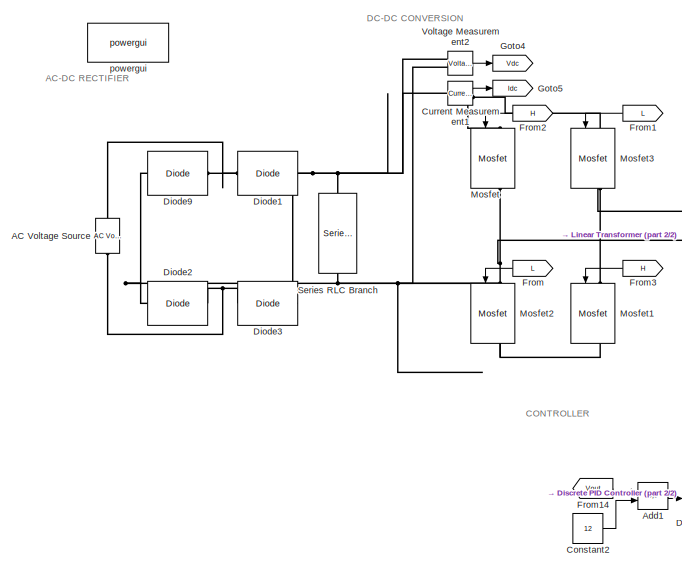
[diagram: root canvas - part 1/2, left side, full height]
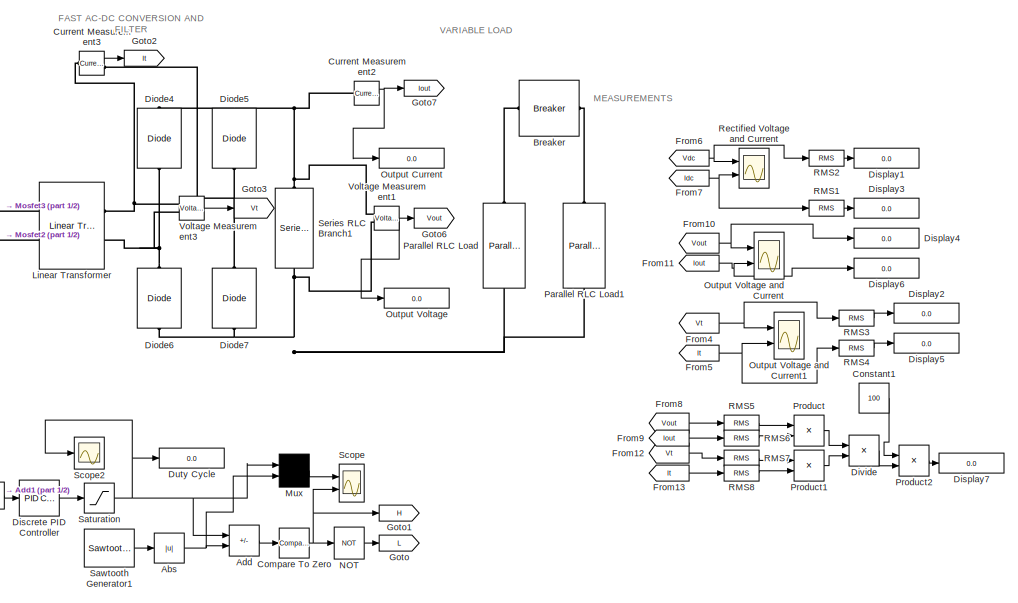
[diagram: root canvas - part 2/2, right side, full height]
MODEL slx_1d7abaa98e18
KIND model
CONFIG AbsTol = auto
CONFIG EnableMultiTasking = off
CONFIG FixedStep = auto
CONFIG MaxStep = auto
CONFIG MinStep = auto
CONFIG RelTol = 1e-3
CONFIG SampleTimeConstraint = Unconstrained
CONFIG SolverName = VariableStepAuto
CONFIG StartTime = 0.0
CONFIG StopTime = 10.0
BLOCK [Reference] AC Voltage Source  REF=spsACVoltageSourceLib/AC Voltage Source
  NameLocation = right
  Ports = [0, 0, 0, 0, 0, 1, 1]
  SourceBlock = spsACVoltageSourceLib/AC Voltage Source
  SourceProductBaseCode = PS
  SourceType = AC Voltage Source
BLOCK [Abs] Abs
  SaturateOnIntegerOverflow = off
BLOCK [Sum] Add
  IconShape = rectangular
  Inputs = +-
  Ports = [2, 1]
BLOCK [Sum] Add1
  IconShape = rectangular
  Inputs = +-
  Ports = [2, 1]
BLOCK [Reference] Breaker  REF=spsBreakerLib/Breaker
  Ports = [0, 0, 0, 0, 0, 1, 1]
  SourceBlock = spsBreakerLib/Breaker
  SourceProductBaseCode = PS
  SourceType = Breaker
BLOCK [Reference] Compare To Zero  REF=simulink/Logic and Bit
Operations/Compare
To Zero
  Ports = [1, 1]
  SourceBlock = simulink/Logic and Bit\nOperations/Compare\nTo Zero
  SourceProductBaseCode = SL
  SourceType = Compare To Zero
BLOCK [Constant] Constant1
  Value = 100
BLOCK [Constant] Constant2
  Value = 12
BLOCK [Reference] Current Measurement1  REF=spsCurrentMeasurementLib/Current Measurement
  Ports = [0, 1, 0, 0, 0, 1, 1]
  SourceBlock = spsCurrentMeasurementLib/Current Measurement
  SourceProductBaseCode = PS
  SourceType = Current Measurement
  UserDataPersistent = on
BLOCK [Reference] Current Measurement2  REF=spsCurrentMeasurementLib/Current Measurement
  Ports = [0, 1, 0, 0, 0, 1, 1]
  SourceBlock = spsCurrentMeasurementLib/Current Measurement
  SourceProductBaseCode = PS
  SourceType = Current Measurement
  UserDataPersistent = on
BLOCK [Reference] Current Measurement3  REF=spsCurrentMeasurementLib/Current Measurement
  Ports = [0, 1, 0, 0, 0, 1, 1]
  SourceBlock = spsCurrentMeasurementLib/Current Measurement
  SourceProductBaseCode = PS
  SourceType = Current Measurement
  UserDataPersistent = on
BLOCK [Reference] Diode1  REF=spsDiodeLib/Diode
  Ports = [0, 0, 0, 0, 0, 1, 1]
  SourceBlock = spsDiodeLib/Diode
  SourceProductBaseCode = PS
  SourceType = Diode
BLOCK [Reference] Diode2  REF=spsDiodeLib/Diode
  Ports = [0, 0, 0, 0, 0, 1, 1]
  SourceBlock = spsDiodeLib/Diode
  SourceProductBaseCode = PS
  SourceType = Diode
BLOCK [Reference] Diode3  REF=spsDiodeLib/Diode
  Ports = [0, 0, 0, 0, 0, 1, 1]
  SourceBlock = spsDiodeLib/Diode
  SourceProductBaseCode = PS
  SourceType = Diode
BLOCK [Reference] Diode4  REF=spsDiodeLib/Diode
  NameLocation = right
  Ports = [0, 0, 0, 0, 0, 1, 1]
  SourceBlock = spsDiodeLib/Diode
  SourceProductBaseCode = PS
  SourceType = Diode
BLOCK [Reference] Diode5  REF=spsDiodeLib/Diode
  NameLocation = right
  Ports = [0, 0, 0, 0, 0, 1, 1]
  SourceBlock = spsDiodeLib/Diode
  SourceProductBaseCode = PS
  SourceType = Diode
BLOCK [Reference] Diode6  REF=spsDiodeLib/Diode
  NameLocation = right
  Ports = [0, 0, 0, 0, 0, 1, 1]
  SourceBlock = spsDiodeLib/Diode
  SourceProductBaseCode = PS
  SourceType = Diode
BLOCK [Reference] Diode7  REF=spsDiodeLib/Diode
  NameLocation = right
  Ports = [0, 0, 0, 0, 0, 1, 1]
  SourceBlock = spsDiodeLib/Diode
  SourceProductBaseCode = PS
  SourceType = Diode
BLOCK [Reference] Diode9  REF=spsDiodeLib/Diode
  Ports = [0, 0, 0, 0, 0, 1, 1]
  SourceBlock = spsDiodeLib/Diode
  SourceProductBaseCode = PS
  SourceType = Diode
BLOCK [Reference] Discrete PID Controller  REF=pid_lib/PID Controller
  Ports = [1, 1]
  SourceBlock = pid_lib/PID Controller
  SourceProductBaseCode = SL
  SourceType = PID 1dof
BLOCK [Display] Display1
  Decimation = 1
  Ports = [1]
BLOCK [Display] Display2
  Decimation = 1
  Ports = [1]
BLOCK [Display] Display3
  Decimation = 1
  Ports = [1]
BLOCK [Display] Display4
  Decimation = 1
  Ports = [1]
BLOCK [Display] Display5
  Decimation = 1
  Ports = [1]
BLOCK [Display] Display6
  Decimation = 1
  Ports = [1]
BLOCK [Display] Display7
  Decimation = 1
  Ports = [1]
BLOCK [Product] Divide
  Inputs = */
  Ports = [2, 1]
BLOCK [Display] Duty Cycle
  Decimation = 1
  Ports = [1]
BLOCK [From] From
  GotoTag = L
  NameLocation = top
BLOCK [From] From1
  GotoTag = L
  NameLocation = top
BLOCK [From] From10
  GotoTag = Vout
BLOCK [From] From11
  GotoTag = Iout
BLOCK [From] From12
  GotoTag = Vt
BLOCK [From] From13
  GotoTag = It
BLOCK [From] From14
  GotoTag = Vout
BLOCK [From] From2
  GotoTag = H
  NameLocation = top
BLOCK [From] From3
  GotoTag = H
  NameLocation = top
BLOCK [From] From4
  GotoTag = Vt
BLOCK [From] From5
  GotoTag = It
BLOCK [From] From6
  GotoTag = Vdc
BLOCK [From] From7
  GotoTag = Idc
BLOCK [From] From8
  GotoTag = Vout
BLOCK [From] From9
  GotoTag = Iout
BLOCK [Goto] Goto
  GotoTag = L
BLOCK [Goto] Goto1
  GotoTag = H
BLOCK [Goto] Goto2
  GotoTag = It
BLOCK [Goto] Goto3
  GotoTag = Vt
BLOCK [Goto] Goto4
  GotoTag = Vdc
BLOCK [Goto] Goto5
  GotoTag = Idc
BLOCK [Goto] Goto6
  GotoTag = Vout
BLOCK [Goto] Goto7
  GotoTag = Iout
BLOCK [Reference] Linear Transformer  REF=spsLinearTransformerLib/Linear Transformer
  Ports = [0, 0, 0, 0, 0, 2, 2]
  SourceBlock = spsLinearTransformerLib/Linear Transformer
  SourceProductBaseCode = PS
  SourceType = Linear Transformer
BLOCK [Reference] Mosfet  REF=spsMosfetLib/Mosfet
  NameLocation = left
  Ports = [1, 1, 0, 0, 0, 1, 1]
  SourceBlock = spsMosfetLib/Mosfet
  SourceProductBaseCode = PS
  SourceType = Mosfet
BLOCK [Reference] Mosfet1  REF=spsMosfetLib/Mosfet
  NameLocation = left
  Ports = [1, 1, 0, 0, 0, 1, 1]
  SourceBlock = spsMosfetLib/Mosfet
  SourceProductBaseCode = PS
  SourceType = Mosfet
BLOCK [Reference] Mosfet2  REF=spsMosfetLib/Mosfet
  NameLocation = left
  Ports = [1, 1, 0, 0, 0, 1, 1]
  SourceBlock = spsMosfetLib/Mosfet
  SourceProductBaseCode = PS
  SourceType = Mosfet
BLOCK [Reference] Mosfet3  REF=spsMosfetLib/Mosfet
  NameLocation = left
  Ports = [1, 1, 0, 0, 0, 1, 1]
  SourceBlock = spsMosfetLib/Mosfet
  SourceProductBaseCode = PS
  SourceType = Mosfet
BLOCK [Mux] Mux
  Inputs = 2
  Ports = [2, 1]
BLOCK [Logic] NOT
  AllPortsSameDT = off
  IconShape = distinctive
  Operator = NOT
  OutDataTypeStr = boolean
  Ports = [1, 1]
BLOCK [Display] Output Current
  Decimation = 1
  Ports = [1]
BLOCK [Display] Output Voltage
  Decimation = 1
  Ports = [1]
BLOCK [Scope] Output Voltage and Current
  Floating = off
  NumInputPorts = 2
  Ports = [2]
  ScopeSpecificationString = Simulink.scopes.TimeScopeBlockCfg('CurrentConfiguration', extmgr.ConfigurationSet(extmgr.Configuration('Core','General UI',true,'FigureColor',[1 1 1]),extmgr.Configuration('Core','Source UI',true),extmgr.Configuration('Sources','WiredSimulink',true,'DataLoggingVariableName','ScopeData2'),extmgr.Configuration('Visuals','Time Domain',true,'SerializedDisplays',{struct('MinYLimReal','-1.66123','MaxYLi...<+2371ch>
BLOCK [Scope] Output Voltage and Current1
  Floating = off
  NumInputPorts = 2
  Ports = [2]
  ScopeSpecificationString = Simulink.scopes.TimeScopeBlockCfg('CurrentConfiguration', extmgr.ConfigurationSet(extmgr.Configuration('Core','General UI',true,'FigureColor',[1 1 1]),extmgr.Configuration('Core','Source UI',true),extmgr.Configuration('Sources','WiredSimulink',true,'DataLoggingVariableName','ScopeData1'),extmgr.Configuration('Visuals','Time Domain',true,'SerializedDisplays',{struct('MinYLimReal','-1.66123','MaxYLi...<+2328ch>
BLOCK [Reference] Parallel RLC Load  REF=spsParallelRLCLoadLib/Parallel RLC Load
  AttributesFormatString = \n
  NameLocation = left
  Ports = [0, 0, 0, 0, 0, 1, 1]
  SourceBlock = spsParallelRLCLoadLib/Parallel RLC Load
  SourceProductBaseCode = PS
  SourceType = Parallel RLC Load
BLOCK [Reference] Parallel RLC Load1  REF=spsParallelRLCLoadLib/Parallel RLC Load
  AttributesFormatString = \n
  NameLocation = left
  Ports = [0, 0, 0, 0, 0, 1, 1]
  SourceBlock = spsParallelRLCLoadLib/Parallel RLC Load
  SourceProductBaseCode = PS
  SourceType = Parallel RLC Load
BLOCK [Product] Product
  Ports = [2, 1]
BLOCK [Product] Product1
  Ports = [2, 1]
BLOCK [Product] Product2
  Ports = [2, 1]
BLOCK [Reference] RMS1  REF=spsRMSLib/RMS
  Ports = [1, 1]
  SourceBlock = spsRMSLib/RMS
  SourceProductBaseCode = PS
  SourceType = RMS
BLOCK [Reference] RMS2  REF=spsRMSLib/RMS
  Ports = [1, 1]
  SourceBlock = spsRMSLib/RMS
  SourceProductBaseCode = PS
  SourceType = RMS
BLOCK [Reference] RMS3  REF=spsRMSLib/RMS
  Ports = [1, 1]
  SourceBlock = spsRMSLib/RMS
  SourceProductBaseCode = PS
  SourceType = RMS
BLOCK [Reference] RMS4  REF=spsRMSLib/RMS
  Ports = [1, 1]
  SourceBlock = spsRMSLib/RMS
  SourceProductBaseCode = PS
  SourceType = RMS
BLOCK [Reference] RMS5  REF=spsRMSLib/RMS
  Ports = [1, 1]
  SourceBlock = spsRMSLib/RMS
  SourceProductBaseCode = PS
  SourceType = RMS
BLOCK [Reference] RMS6  REF=spsRMSLib/RMS
  Ports = [1, 1]
  SourceBlock = spsRMSLib/RMS
  SourceProductBaseCode = PS
  SourceType = RMS
BLOCK [Reference] RMS7  REF=spsRMSLib/RMS
  Ports = [1, 1]
  SourceBlock = spsRMSLib/RMS
  SourceProductBaseCode = PS
  SourceType = RMS
BLOCK [Reference] RMS8  REF=spsRMSLib/RMS
  Ports = [1, 1]
  SourceBlock = spsRMSLib/RMS
  SourceProductBaseCode = PS
  SourceType = RMS
BLOCK [Scope] Rectified Voltage and Current
  Floating = off
  NumInputPorts = 2
  Ports = [2]
  ScopeSpecificationString = Simulink.scopes.TimeScopeBlockCfg('CurrentConfiguration', extmgr.ConfigurationSet(extmgr.Configuration('Core','General UI',true),extmgr.Configuration('Core','Source UI',true),extmgr.Configuration('Sources','WiredSimulink',true,'DataLoggingVariableName','ScopeData4'),extmgr.Configuration('Visuals','Time Domain',true,'SerializedDisplays',{struct('MinYLimReal','305.38635','MaxYLimReal','310.8657','YL...<+2123ch>
BLOCK [Saturate] Saturation
  LinearizeAsGain = off
  LowerLimit = 0
  UpperLimit = 0.9
BLOCK [Reference] Sawtooth Generator1  REF=spsSawtoothGeneratorLib/Sawtooth
Generator
  Ports = [0, 1]
  SourceBlock = spsSawtoothGeneratorLib/Sawtooth\nGenerator
  SourceProductBaseCode = PS
  SourceType = Sawtooth Generator
BLOCK [Scope] Scope
  Floating = off
  NumInputPorts = 2
  Ports = [2]
  ScopeSpecificationString = Simulink.scopes.TimeScopeBlockCfg('CurrentConfiguration', extmgr.ConfigurationSet(extmgr.Configuration('Core','General UI',true,'FigureColor',[1 1 1]),extmgr.Configuration('Core','Source UI',true),extmgr.Configuration('Sources','WiredSimulink',true),extmgr.Configuration('Visuals','Time Domain',true,'SerializedDisplays',{struct('MinYLimReal','-0.125','MaxYLimReal','1.125','YLabelReal','','MinYLimMa...<+2363ch>
BLOCK [Scope] Scope2
  Floating = off
  NumInputPorts = 1
  Ports = [1]
  ScopeSpecificationString = Simulink.scopes.TimeScopeBlockCfg('CurrentConfiguration', extmgr.ConfigurationSet(extmgr.Configuration('Core','General UI',true),extmgr.Configuration('Core','Source UI',true),extmgr.Configuration('Sources','WiredSimulink',true,'DataLoggingVariableName','ScopeData2'),extmgr.Configuration('Visuals','Time Domain',true,'SerializedDisplays',{struct('MinYLimReal','0.68863','MaxYLimReal','0.71649','YLabe...<+1475ch>
BLOCK [Reference] Series RLC Branch  REF=spsSeriesRLCBranchLib/Series RLC Branch
  NameLocation = left
  Ports = [0, 0, 0, 0, 0, 1, 1]
  SourceBlock = spsSeriesRLCBranchLib/Series RLC Branch
  SourceProductBaseCode = PS
  SourceType = Series RLC Branch
BLOCK [Reference] Series RLC Branch1  REF=spsSeriesRLCBranchLib/Series RLC Branch
  NameLocation = left
  Ports = [0, 0, 0, 0, 0, 1, 1]
  SourceBlock = spsSeriesRLCBranchLib/Series RLC Branch
  SourceProductBaseCode = PS
  SourceType = Series RLC Branch
BLOCK [Reference] Voltage Measurement1  REF=spsVoltageMeasurementLib/Voltage Measurement
  Ports = [0, 1, 0, 0, 0, 2]
  SourceBlock = spsVoltageMeasurementLib/Voltage Measurement
  SourceProductBaseCode = PS
  SourceType = Voltage Measurement
  UserDataPersistent = on
BLOCK [Reference] Voltage Measurement2  REF=spsVoltageMeasurementLib/Voltage Measurement
  Ports = [0, 1, 0, 0, 0, 2]
  SourceBlock = spsVoltageMeasurementLib/Voltage Measurement
  SourceProductBaseCode = PS
  SourceType = Voltage Measurement
  UserDataPersistent = on
BLOCK [Reference] Voltage Measurement3  REF=spsVoltageMeasurementLib/Voltage Measurement
  Ports = [0, 1, 0, 0, 0, 2]
  SourceBlock = spsVoltageMeasurementLib/Voltage Measurement
  SourceProductBaseCode = PS
  SourceType = Voltage Measurement
  UserDataPersistent = on
BLOCK [Reference] powergui  REF=spspowerguiLib/powergui
  Ports = []
  Priority = 1
  SourceBlock = spspowerguiLib/powergui
  SourceProductBaseCode = PS
  SourceType = PSB option menu block
ANNOTATION (root): AC-DC RECTIFIER
ANNOTATION (root): CONTROLLER
ANNOTATION (root): DC-DC CONVERSION
ANNOTATION (root): FAST AC-DC CONVERSION AND FILTER
ANNOTATION (root): MEASUREMENTS
ANNOTATION (root): VARIABLE LOAD
NET Abs:1 -> Add:2, Mux:2
LINE Add1:1 -> Discrete PID Controller:1
LINE Add:1 -> Compare To Zero:1
NET Compare To Zero:1 -> Goto1:1, NOT:1, Scope:2
LINE Constant1:1 -> Product2:1
LINE Constant2:1 -> Add1:2
LINE Current Measurement1:1 -> Goto5:1
NET Current Measurement2:1 -> Goto7:1, Output Current:1
LINE Current Measurement3:1 -> Goto2:1
LINE Discrete PID Controller:1 -> Saturation:1
LINE Divide:1 -> Product2:2
NET From10:1 -> Display4:1, Output Voltage and Current:1
NET From11:1 -> Display6:1, Output Voltage and Current:2
LINE From12:1 -> RMS7:1
LINE From13:1 -> RMS8:1
LINE From14:1 -> Add1:1
LINE From1:1 -> Mosfet3:1
LINE From2:1 -> Mosfet:1
LINE From3:1 -> Mosfet1:1
NET From4:1 -> Output Voltage and Current1:1, RMS3:1
NET From5:1 -> Output Voltage and Current1:2, RMS4:1
NET From6:1 -> RMS2:1, Rectified Voltage and Current:1
NET From7:1 -> RMS1:1, Rectified Voltage and Current:2
LINE From8:1 -> RMS5:1
LINE From9:1 -> RMS6:1
LINE From:1 -> Mosfet2:1
LINE Mux:1 -> Scope:1
LINE NOT:1 -> Goto:1
LINE Product1:1 -> Divide:2
LINE Product2:1 -> Display7:1
LINE Product:1 -> Divide:1
LINE RMS1:1 -> Display3:1
LINE RMS2:1 -> Display1:1
LINE RMS3:1 -> Display2:1
LINE RMS4:1 -> Display5:1
LINE RMS5:1 -> Product:1
LINE RMS6:1 -> Product:2
LINE RMS7:1 -> Product1:1
LINE RMS8:1 -> Product1:2
NET Saturation:1 -> Add:1, Duty Cycle:1, Mux:1, Scope2:1
LINE Sawtooth Generator1:1 -> Abs:1
NET Voltage Measurement1:1 -> Goto6:1, Output Voltage:1
LINE Voltage Measurement2:1 -> Goto4:1
LINE Voltage Measurement3:1 -> Goto3:1
PNET net1: AC Voltage Source:LConn1 -- Diode2:RConn1 -- Diode3:LConn1
PNET net2: AC Voltage Source:RConn1 -- Diode1:LConn1 -- Diode9:RConn1
PLINE Breaker:LConn1 -- Parallel RLC Load:LConn1
PLINE Breaker:RConn1 -- Parallel RLC Load1:LConn1
PNET net3: Current Measurement1:LConn1 -- Diode1:RConn1 -- Diode3:RConn1 -- Series RLC Branch:LConn1 -- Voltage Measurement2:LConn1
PNET net4: Current Measurement1:RConn1 -- Mosfet3:LConn1 -- Mosfet:LConn1
PNET net5: Current Measurement2:LConn1 -- Diode4:RConn1 -- Diode5:RConn1 -- Series RLC Branch1:LConn1 -- Voltage Measurement1:LConn1
PNET net6: Current Measurement3:LConn1 -- Linear Transformer:RConn1 -- Voltage Measurement3:LConn1
PNET net7: Current Measurement3:RConn1 -- Diode5:LConn1 -- Diode7:RConn1
PNET net8: Diode2:LConn1 -- Diode9:LConn1 -- Mosfet1:RConn1 -- Mosfet2:RConn1 -- Series RLC Branch:RConn1 -- Voltage Measurement2:LConn2
PNET net9: Diode4:LConn1 -- Diode6:RConn1 -- Linear Transformer:RConn2 -- Voltage Measurement3:LConn2
PNET net10: Diode6:LConn1 -- Diode7:LConn1 -- Parallel RLC Load1:RConn1 -- Parallel RLC Load:RConn1 -- Series RLC Branch1:RConn1 -- Voltage Measurement1:LConn2
PNET net11: Linear Transformer:LConn1 -- Mosfet1:LConn1 -- Mosfet3:RConn1
PNET net12: Linear Transformer:LConn2 -- Mosfet2:LConn1 -- Mosfet:RConn1
note: NET lines group one-source signal fan-out (src -> all destinations, sorted); 1:1 wires keep LINE; PNET lines group multi-terminal physical nets as a canonical sorted terminal list (undirected conserving connections); 2-terminal nets keep the pairwise PLINE form
